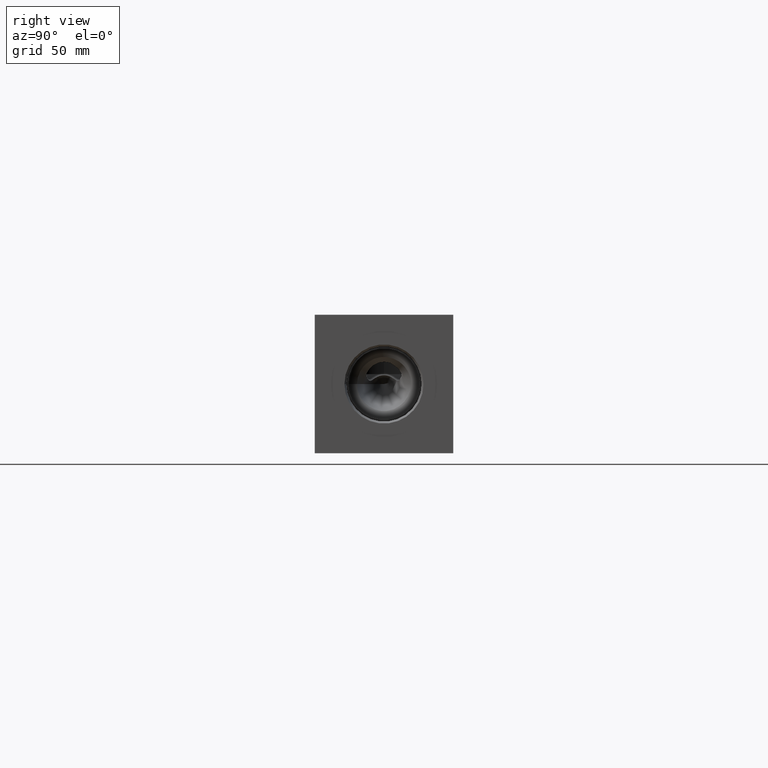
[diagram: clean part render]
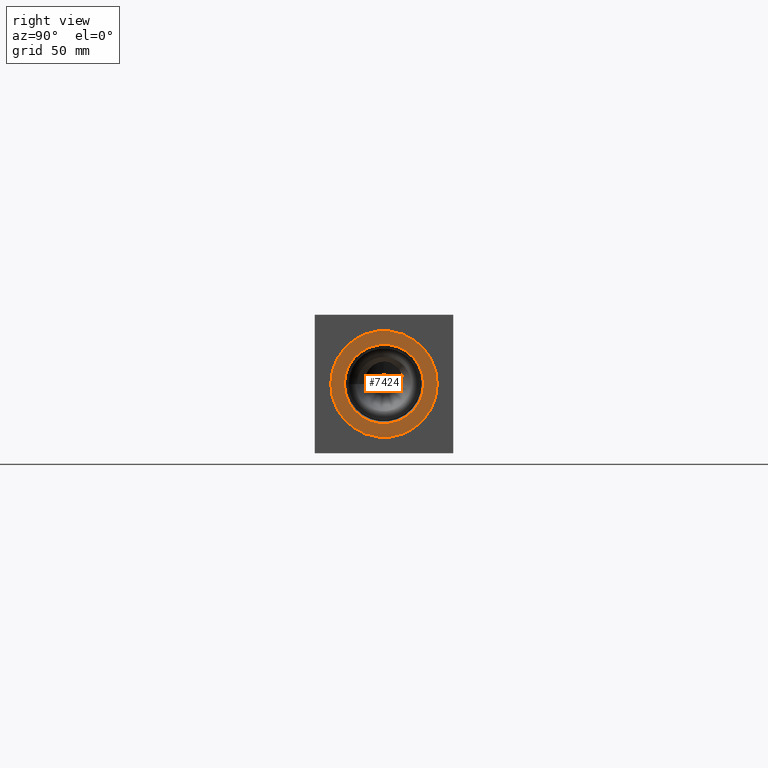
[diagram: same view with one face highlighted and labeled with its STEP entity id]
A machine part, right view. The second image highlights one B-rep face of the part: STEP entity #7424.
In plain terms, the highlighted planar face has unit normal (1, 0, 0).
Its self-contained STEP definition (entity closure, byte-faithful):
#114=CIRCLE('',#7768,29.2862);
#115=CIRCLE('',#7769,29.2862);
#116=CIRCLE('',#7770,21.7551);
#245=FACE_BOUND('',#1279,.T.);
#859=FACE_OUTER_BOUND('',#1278,.T.);
#1278=EDGE_LOOP('',(#6252,#6253));
#1279=EDGE_LOOP('',(#6254));
#3382=VERTEX_POINT('',#12534);
#3383=VERTEX_POINT('',#12535);
#3384=VERTEX_POINT('',#12538);
#4366=EDGE_CURVE('',#3382,#3383,#114,.T.);
#4367=EDGE_CURVE('',#3383,#3382,#115,.T.);
#4368=EDGE_CURVE('',#3384,#3384,#116,.T.);
#6252=ORIENTED_EDGE('',*,*,#4366,.T.);
#6253=ORIENTED_EDGE('',*,*,#4367,.T.);
#6254=ORIENTED_EDGE('',*,*,#4368,.F.);
#6795=PLANE('',#7767);
#7424=ADVANCED_FACE('',(#859,#245),#6795,.T.);
#7767=AXIS2_PLACEMENT_3D('',#12533,#9114,#9115);
#7768=AXIS2_PLACEMENT_3D('',#12536,#9116,#9117);
#7769=AXIS2_PLACEMENT_3D('',#12537,#9118,#9119);
#7770=AXIS2_PLACEMENT_3D('',#12539,#9120,#9121);
#9114=DIRECTION('center_axis',(1.,0.,0.));
#9115=DIRECTION('ref_axis',(0.,1.,0.));
#9116=DIRECTION('center_axis',(1.,0.,0.));
#9117=DIRECTION('ref_axis',(0.,1.,0.));
#9118=DIRECTION('center_axis',(1.,0.,0.));
#9119=DIRECTION('ref_axis',(0.,1.,0.));
#9120=DIRECTION('center_axis',(1.,0.,0.));
#9121=DIRECTION('ref_axis',(0.,1.,0.));
#12533=CARTESIAN_POINT('Origin',(386.5626,38.1,38.1));
#12534=CARTESIAN_POINT('',(386.5626,67.3862,38.1));
#12535=CARTESIAN_POINT('',(386.5626,8.8138,38.1));
#12536=CARTESIAN_POINT('Origin',(386.5626,38.1,38.1));
#12537=CARTESIAN_POINT('Origin',(386.5626,38.1,38.1));
#12538=CARTESIAN_POINT('',(386.5626,16.3449,38.1));
#12539=CARTESIAN_POINT('Origin',(386.5626,38.1,38.1));